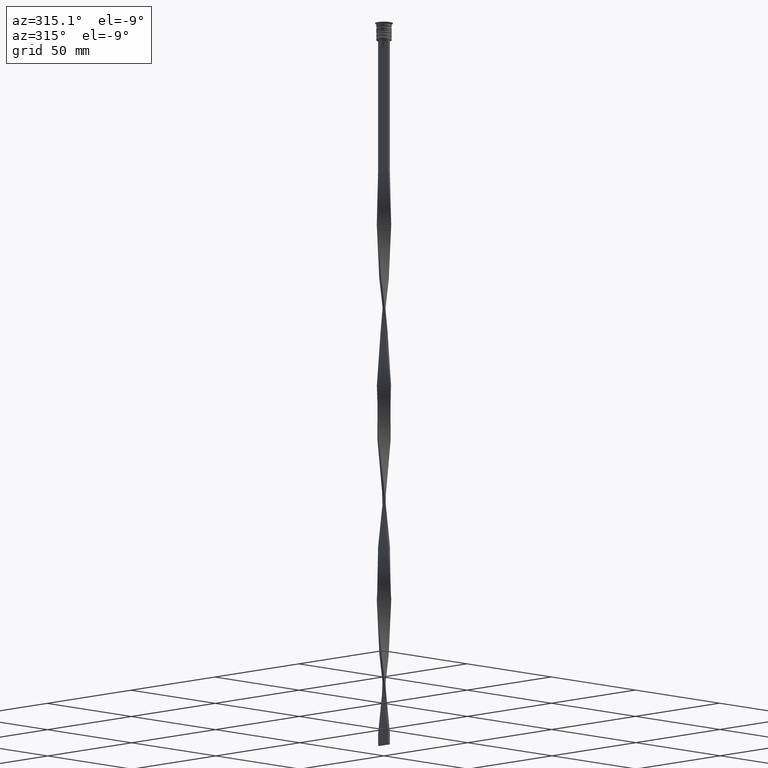
[diagram: clean part render]
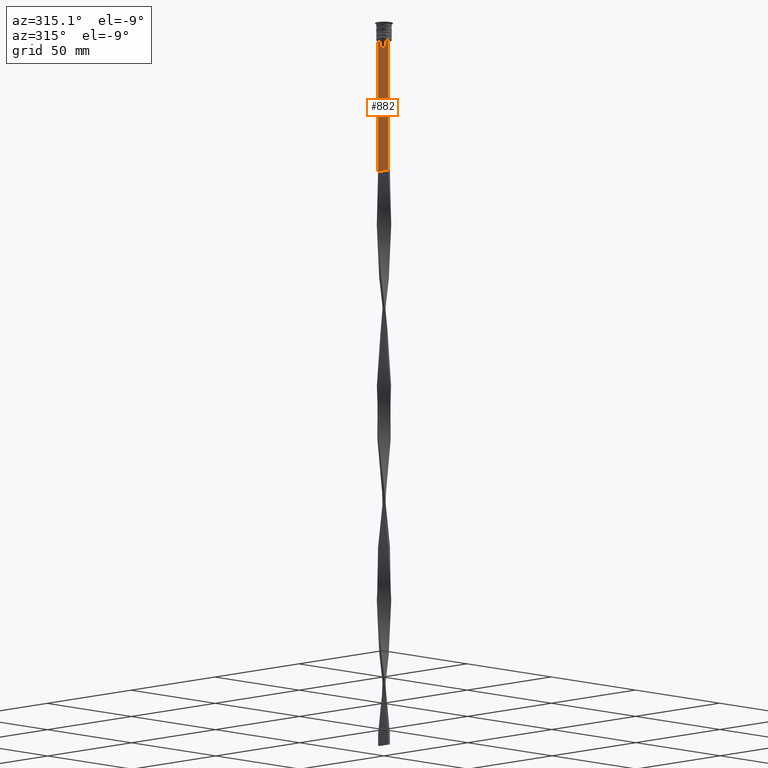
[diagram: same view with one face highlighted and labeled with its STEP entity id]
A machine part, auxiliary view. The second image highlights one B-rep face of the part: STEP entity #882.
In plain terms, the highlighted planar face has unit normal (-1, 0, 0).
Its self-contained STEP definition (entity closure, byte-faithful):
#23 = DIRECTION ( 'NONE',  ( 0.000000000000000000, -1.000000000000000000, 0.000000000000000000 ) ) ;
#64 = DIRECTION ( 'NONE',  ( 0.000000000000000000, -1.000000000000000000, 0.000000000000000000 ) ) ;
#128 = ORIENTED_EDGE ( 'NONE', *, *, #595, .F. ) ;
#189 = VERTEX_POINT ( 'NONE', #775 ) ;
#270 = CARTESIAN_POINT ( 'NONE',  ( -0.5000000000000001110, 1.918907889994530658, -7.667424704779945976 ) ) ;
#323 = CARTESIAN_POINT ( 'NONE',  ( -0.5000000000000001110, 1.572418519351642230, -8.000000000000000000 ) ) ;
#345 = VECTOR ( 'NONE', #3172, 1000.000000000000000 ) ;
#387 = B_SPLINE_CURVE_WITH_KNOTS ( 'NONE', 3,
 ( #1549, #270, #876, #2062 ),
 .UNSPECIFIED., .F., .F.,
 ( 4, 4 ),
 ( 0.003696428037903516997, 0.004416830248125220952 ),
 .UNSPECIFIED. ) ;
#418 = CARTESIAN_POINT ( 'NONE',  ( -0.5000000000000001110, -3.000000000000000000, -7.500000000000000000 ) ) ;
#471 = EDGE_CURVE ( 'NONE', #1917, #2346, #599, .T. ) ;
#499 = EDGE_CURVE ( 'NONE', #1770, #1200, #541, .T. ) ;
#538 = ORIENTED_EDGE ( 'NONE', *, *, #2549, .F. ) ;
#541 = LINE ( 'NONE', #1468, #1597 ) ;
#577 = CARTESIAN_POINT ( 'NONE',  ( -0.5000000000000001110, 1.650000000000003464, -10.49999999999999822 ) ) ;
#595 = EDGE_CURVE ( 'NONE', #3312, #1917, #1524, .T. ) ;
#599 = LINE ( 'NONE', #577, #3457 ) ;
#641 = CARTESIAN_POINT ( 'NONE',  ( -0.5000000000000001110, 2.091052366632653481, -7.500000000000000000 ) ) ;
#704 = CARTESIAN_POINT ( 'NONE',  ( -0.5000000000000001110, -1.572418519351642230, -10.49999999999999822 ) ) ;
#710 = VECTOR ( 'NONE', #2882, 1000.000000000000000 ) ;
#743 = LINE ( 'NONE', #2840, #345 ) ;
#747 = LINE ( 'NONE', #1938, #710 ) ;
#775 = CARTESIAN_POINT ( 'NONE',  ( -0.5000000000000001110, -1.572418519351642230, -8.000000000000000000 ) ) ;
#820 = VERTEX_POINT ( 'NONE', #1758 ) ;
#833 = EDGE_CURVE ( 'NONE', #2184, #3312, #387, .T. ) ;
#876 = CARTESIAN_POINT ( 'NONE',  ( -0.5000000000000001110, 1.746261636039132092, -7.834330826581080487 ) ) ;
#882 = ADVANCED_FACE ( 'NONE', ( #1155 ), #3262, .T. ) ;
#934 = DIRECTION ( 'NONE',  ( -1.000000000000000000, 0.000000000000000000, 0.000000000000000000 ) ) ;
#940 = ORIENTED_EDGE ( 'NONE', *, *, #2686, .F. ) ;
#960 = EDGE_CURVE ( 'NONE', #3015, #1770, #1293, .T. ) ;
#1073 = CARTESIAN_POINT ( 'NONE',  ( -0.5000000000000001110, -3.000000000000000000, -63.00000000000000000 ) ) ;
#1094 = ORIENTED_EDGE ( 'NONE', *, *, #499, .F. ) ;
#1100 = VECTOR ( 'NONE', #1466, 1000.000000000000000 ) ;
#1155 = FACE_OUTER_BOUND ( 'NONE', #3386, .T. ) ;
#1176 = DIRECTION ( 'NONE',  ( 0.000000000000000000, 0.000000000000000000, 1.000000000000000000 ) ) ;
#1184 = EDGE_CURVE ( 'NONE', #820, #2184, #747, .T. ) ;
#1199 = CARTESIAN_POINT ( 'NONE',  ( -0.5000000000000001110, 1.572418519351642230, -10.49999999999999822 ) ) ;
#1200 = VERTEX_POINT ( 'NONE', #2865 ) ;
#1293 = LINE ( 'NONE', #418, #3762 ) ;
#1466 = DIRECTION ( 'NONE',  ( 0.000000000000000000, 0.000000000000000000, -1.000000000000000000 ) ) ;
#1468 = CARTESIAN_POINT ( 'NONE',  ( -0.5000000000000001110, -3.000000000000000000, -1.417237469701779329 ) ) ;
#1524 = LINE ( 'NONE', #2711, #3520 ) ;
#1549 = CARTESIAN_POINT ( 'NONE',  ( -0.5000000000000001110, 2.091052366632653481, -7.500000000000000000 ) ) ;
#1597 = VECTOR ( 'NONE', #2103, 1000.000000000000000 ) ;
#1758 = CARTESIAN_POINT ( 'NONE',  ( -0.5000000000000001110, 3.000000000000000000, -7.500000000000000000 ) ) ;
#1770 = VERTEX_POINT ( 'NONE', #2537 ) ;
#1778 = CARTESIAN_POINT ( 'NONE',  ( -0.5000000000000001110, -3.000000000000000000, -1.417237469701779329 ) ) ;
#1917 = VERTEX_POINT ( 'NONE', #1199 ) ;
#1927 = LINE ( 'NONE', #1073, #2786 ) ;
#1938 = CARTESIAN_POINT ( 'NONE',  ( -0.5000000000000001110, -3.000000000000000000, -7.500000000000000000 ) ) ;
#1982 = ORIENTED_EDGE ( 'NONE', *, *, #1184, .F. ) ;
#2062 = CARTESIAN_POINT ( 'NONE',  ( -0.5000000000000001110, 1.572418519351642230, -8.000000000000000000 ) ) ;
#2103 = DIRECTION ( 'NONE',  ( 0.000000000000000000, 0.000000000000000000, -1.000000000000000000 ) ) ;
#2141 = AXIS2_PLACEMENT_3D ( 'NONE', #1778, #934, #1176 ) ;
#2184 = VERTEX_POINT ( 'NONE', #641 ) ;
#2346 = VERTEX_POINT ( 'NONE', #704 ) ;
#2403 = ORIENTED_EDGE ( 'NONE', *, *, #2702, .F. ) ;
#2523 = CARTESIAN_POINT ( 'NONE',  ( -0.5000000000000001110, 3.000000000000000000, -63.00000000000000000 ) ) ;
#2537 = CARTESIAN_POINT ( 'NONE',  ( -0.5000000000000001110, -3.000000000000000000, -7.500000000000000000 ) ) ;
#2549 = EDGE_CURVE ( 'NONE', #2346, #189, #743, .T. ) ;
#2576 = ORIENTED_EDGE ( 'NONE', *, *, #3042, .T. ) ;
#2612 = CARTESIAN_POINT ( 'NONE',  ( -0.5000000000000001110, 3.000000000000000000, -1.417237469701779329 ) ) ;
#2673 = DIRECTION ( 'NONE',  ( 0.000000000000000000, 0.000000000000000000, -1.000000000000000000 ) ) ;
#2686 = EDGE_CURVE ( 'NONE', #189, #3015, #3048, .T. ) ;
#2702 = EDGE_CURVE ( 'NONE', #1200, #3494, #1927, .T. ) ;
#2711 = CARTESIAN_POINT ( 'NONE',  ( -0.5000000000000001110, 1.572418519351642230, 0.000000000000000000 ) ) ;
#2786 = VECTOR ( 'NONE', #3420, 1000.000000000000000 ) ;
#2840 = CARTESIAN_POINT ( 'NONE',  ( -0.5000000000000001110, -1.572418519351642230, 0.000000000000000000 ) ) ;
#2865 = CARTESIAN_POINT ( 'NONE',  ( -0.5000000000000001110, -3.000000000000000000, -63.00000000000000000 ) ) ;
#2872 = CARTESIAN_POINT ( 'NONE',  ( -0.5000000000000001110, -1.572418519351642230, -8.000000000000000000 ) ) ;
#2882 = DIRECTION ( 'NONE',  ( 0.000000000000000000, -1.000000000000000000, 0.000000000000000000 ) ) ;
#3015 = VERTEX_POINT ( 'NONE', #3737 ) ;
#3042 = EDGE_CURVE ( 'NONE', #820, #3494, #3824, .T. ) ;
#3048 = B_SPLINE_CURVE_WITH_KNOTS ( 'NONE', 3,
 ( #2872, #3741, #3113, #3143 ),
 .UNSPECIFIED., .F., .F.,
 ( 4, 4 ),
 ( 0.008356915209744724543, 0.009073319521387648162 ),
 .UNSPECIFIED. ) ;
#3113 = CARTESIAN_POINT ( 'NONE',  ( -0.5000000000000001110, -1.918909712772151721, -7.667422931978337353 ) ) ;
#3143 = CARTESIAN_POINT ( 'NONE',  ( -0.5000000000000001110, -2.091052366632653481, -7.500000000000000000 ) ) ;
#3172 = DIRECTION ( 'NONE',  ( -0.000000000000000000, -0.000000000000000000, 1.000000000000000000 ) ) ;
#3262 = PLANE ( 'NONE',  #2141 ) ;
#3267 = ORIENTED_EDGE ( 'NONE', *, *, #471, .F. ) ;
#3312 = VERTEX_POINT ( 'NONE', #323 ) ;
#3386 = EDGE_LOOP ( 'NONE', ( #3778, #1982, #2576, #2403, #1094, #3421, #940, #538, #3267, #128 ) ) ;
#3420 = DIRECTION ( 'NONE',  ( 0.000000000000000000, 1.000000000000000000, 0.000000000000000000 ) ) ;
#3421 = ORIENTED_EDGE ( 'NONE', *, *, #960, .F. ) ;
#3457 = VECTOR ( 'NONE', #23, 1000.000000000000000 ) ;
#3494 = VERTEX_POINT ( 'NONE', #2523 ) ;
#3520 = VECTOR ( 'NONE', #2673, 1000.000000000000000 ) ;
#3737 = CARTESIAN_POINT ( 'NONE',  ( -0.5000000000000001110, -2.091052366632653481, -7.500000000000000000 ) ) ;
#3741 = CARTESIAN_POINT ( 'NONE',  ( -0.5000000000000001110, -1.746240429054158660, -7.834351036433149673 ) ) ;
#3762 = VECTOR ( 'NONE', #64, 1000.000000000000000 ) ;
#3778 = ORIENTED_EDGE ( 'NONE', *, *, #833, .F. ) ;
#3824 = LINE ( 'NONE', #2612, #1100 ) ;